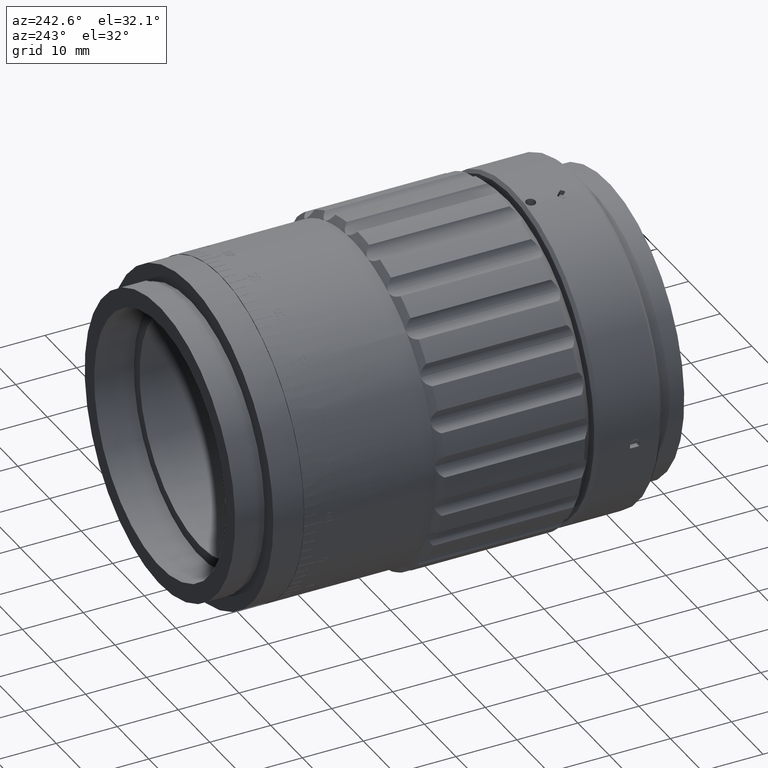
[diagram: clean part render]
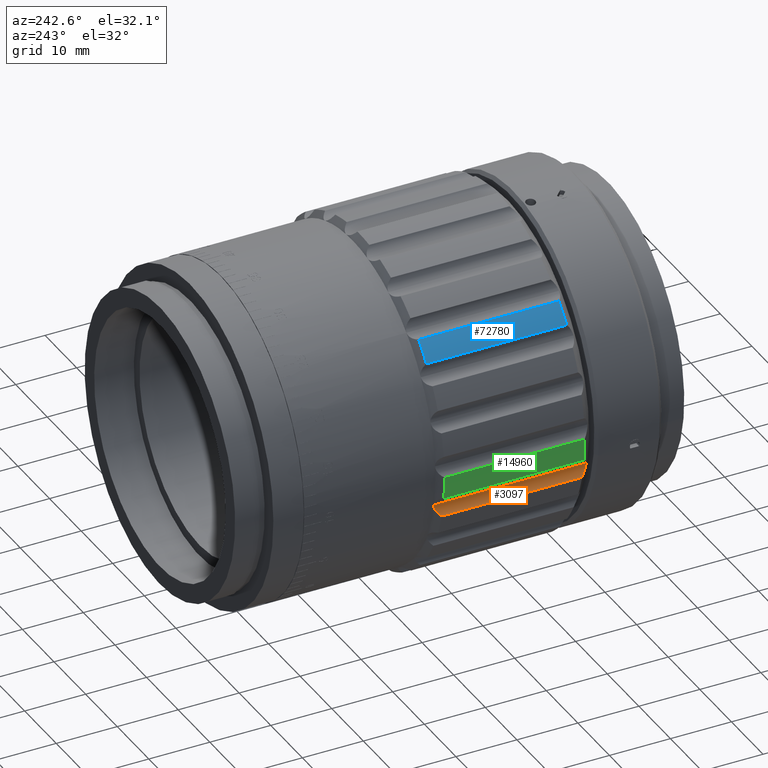
[diagram: same view with three faces highlighted in distinct colors, each labeled with its STEP entity id]
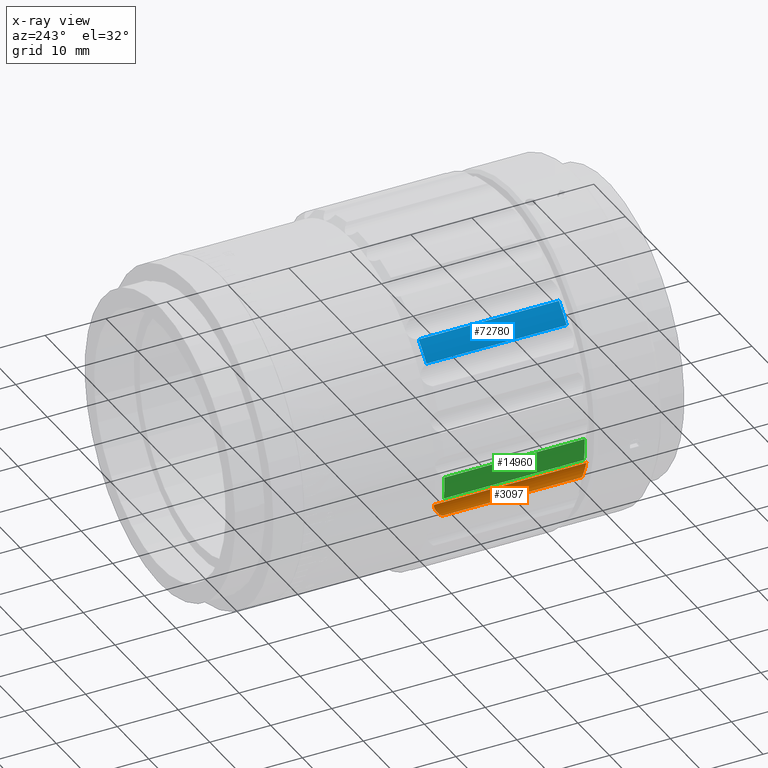
[diagram: x-ray of the same camera — body ghosted, the three highlighted faces saturated]
A machine part, auxiliary view with three faces highlighted in distinct colors.
The next image is the same camera in x-ray (body ghosted, the three faces saturated) — at least one of them is partly hidden behind the body in this view.
Their STEP definitions:

[orange] entity #3097 — the highlighted cylindrical surface (edge-blend (fillet) strip) has radius 2 mm, axis along (0, -1, -0).
#1359 = CYLINDRICAL_SURFACE ( 'NONE', #30071, 2.000000000000002700 ) ;
#2084 = CARTESIAN_POINT ( 'NONE',  ( 23.36665392907053700, -3.441570337347433100, -12.45138271275691500 ) ) ;
#2279 = CARTESIAN_POINT ( 'NONE',  ( 22.73316684934169300, -28.21457821189759200, -13.12499999999982200 ) ) ;
#3097 = ADVANCED_FACE ( 'NONE', ( #77500 ), #1359, .F. ) ;
#3414 = DIRECTION ( 'NONE',  ( 0.0000000000000000000, -1.000000000000000000, 0.0000000000000000000 ) ) ;
#4256 = CARTESIAN_POINT ( 'NONE',  ( 23.22371866839297600, -28.06476916104587400, -12.55448674485722000 ) ) ;
#5098 = CARTESIAN_POINT ( 'NONE',  ( 23.66347315926447700, -27.80261297679608000, -12.28495461717019500 ) ) ;
#10450 = EDGE_CURVE ( 'NONE', #26465, #73636, #64541, .T. ) ;
#11109 = CARTESIAN_POINT ( 'NONE',  ( 24.46521765691058200, -2.714578211897591900, -14.12499999999980800 ) ) ;
#11252 = CARTESIAN_POINT ( 'NONE',  ( 23.15269362647170600, -28.09926723534074700, -12.61309592739423400 ) ) ;
#15771 = CARTESIAN_POINT ( 'NONE',  ( 23.43958839450139200, -3.484700486296731000, -12.40594440328807700 ) ) ;
#17660 = CARTESIAN_POINT ( 'NONE',  ( 22.95518548577694400, -28.17713089429709700, -12.81008659143822600 ) ) ;
#21571 = VERTEX_POINT ( 'NONE', #2279 ) ;
#24651 = CARTESIAN_POINT ( 'NONE',  ( 22.83631678320371700, -28.20691269605203300, -12.96057895350906000 ) ) ;
#26465 = VERTEX_POINT ( 'NONE', #42260 ) ;
#27944 = CARTESIAN_POINT ( 'NONE',  ( 22.73316684934169300, -3.214578211897676200, -13.12499999999982400 ) ) ;
#28938 = CARTESIAN_POINT ( 'NONE',  ( 24.11114494454815500, -3.964103246584269600, -12.15061308000399300 ) ) ;
#30071 = AXIS2_PLACEMENT_3D ( 'NONE', #11109, #83419, #31234 ) ;
#31234 = DIRECTION ( 'NONE',  ( -0.8660254037844434800, 0.0000000000000000000, 0.4999999999999919500 ) ) ;
#31956 = CARTESIAN_POINT ( 'NONE',  ( 22.73316684934169300, -28.21457821189759200, -13.12499999999982200 ) ) ;
#34926 = B_SPLINE_CURVE_WITH_KNOTS ( 'NONE', 3,
 ( #45088, #37805, #84991, #51202, #5098, #84712, #37518, #4256, #11252, #71843, #17660, #24651, #51773, #31956 ),
 .UNSPECIFIED., .F., .F.,
 ( 4, 2, 2, 2, 2, 2, 4 ),
 ( 2.979895395329111000E-007, 0.0005735843058146299400, 0.001146870622089727100, 0.001433513780227274700, 0.001720156938364822300, 0.002006800096502369900, 0.002293443254639917300 ),
 .UNSPECIFIED. ) ;
#35634 = CARTESIAN_POINT ( 'NONE',  ( 24.25793306616263200, -4.086351499841626400, -12.13045732573745100 ) ) ;
#36349 = DIRECTION ( 'NONE',  ( 0.0000000000000000000, -1.000000000000000000, 0.0000000000000000000 ) ) ;
#36403 = ORIENTED_EDGE ( 'NONE', *, *, #67734, .T. ) ;
#37518 = CARTESIAN_POINT ( 'NONE',  ( 23.36728391745860000, -27.98722358619830400, -12.45097098984443600 ) ) ;
#37805 = CARTESIAN_POINT ( 'NONE',  ( 24.25790303709192100, -27.34283140253415200, -12.13045825504238300 ) ) ;
#42260 = CARTESIAN_POINT ( 'NONE',  ( 24.40335358830755300, -4.214578211897617200, -12.12595701971752500 ) ) ;
#42648 = CARTESIAN_POINT ( 'NONE',  ( 23.81394333517196300, -3.734194245562723900, -12.22778811058571500 ) ) ;
#43428 = CARTESIAN_POINT ( 'NONE',  ( 24.40335358830755300, -15.71457821189758900, -12.12595701971752300 ) ) ;
#45088 = CARTESIAN_POINT ( 'NONE',  ( 24.40335358830755700, -27.21457821189765600, -12.12595701971752300 ) ) ;
#45246 = EDGE_CURVE ( 'NONE', #46549, #21571, #77575, .T. ) ;
#46549 = VERTEX_POINT ( 'NONE', #27944 ) ;
#48294 = EDGE_CURVE ( 'NONE', #73636, #21571, #34926, .T. ) ;
#48617 = CARTESIAN_POINT ( 'NONE',  ( 22.73316684934169300, -2.714578211897591900, -13.12499999999982200 ) ) ;
#48764 = CARTESIAN_POINT ( 'NONE',  ( 23.66141083893520800, -3.625167664365868300, -12.28593373872478300 ) ) ;
#49624 = CARTESIAN_POINT ( 'NONE',  ( 22.82930795209946600, -3.214578211897676200, -12.95847872532767800 ) ) ;
#51202 = CARTESIAN_POINT ( 'NONE',  ( 23.81517680416641300, -27.69403601927518500, -12.22741002583297400 ) ) ;
#51773 = CARTESIAN_POINT ( 'NONE',  ( 22.78129773828072000, -28.21457821189759200, -13.04163485494398100 ) ) ;
#56045 = CARTESIAN_POINT ( 'NONE',  ( 22.95138981050834900, -3.245789140871163900, -12.80495319060133300 ) ) ;
#59865 = VECTOR ( 'NONE', #36349, 1000.000000000000000 ) ;
#60994 = B_SPLINE_CURVE_WITH_KNOTS ( 'NONE', 3,
 ( #68837, #49624, #56045, #81974, #69706, #2084, #15771, #48764, #42648, #28938, #35634, #83135 ),
 .UNSPECIFIED., .F., .F.,
 ( 4, 2, 2, 2, 2, 4 ),
 ( 0.002293443254639922900, 0.002866010891116038200, 0.003152294709354094500, 0.003438578527592150400, 0.004011146164068264300, 0.004583713800544377900 ),
 .UNSPECIFIED. ) ;
#61760 = ORIENTED_EDGE ( 'NONE', *, *, #10450, .T. ) ;
#61977 = ORIENTED_EDGE ( 'NONE', *, *, #48294, .T. ) ;
#64541 = LINE ( 'NONE', #43428, #77080 ) ;
#67734 = EDGE_CURVE ( 'NONE', #46549, #26465, #60994, .T. ) ;
#68837 = CARTESIAN_POINT ( 'NONE',  ( 22.73316684934169300, -3.214578211897676200, -13.12499999999982400 ) ) ;
#69706 = CARTESIAN_POINT ( 'NONE',  ( 23.22307913054056500, -3.364064236255754000, -12.55499077404239100 ) ) ;
#71843 = CARTESIAN_POINT ( 'NONE',  ( 23.01861726366471200, -28.15530689563528800, -12.74083217870726900 ) ) ;
#73636 = VERTEX_POINT ( 'NONE', #77259 ) ;
#74880 = ORIENTED_EDGE ( 'NONE', *, *, #45246, .F. ) ;
#77080 = VECTOR ( 'NONE', #3414, 1000.000000000000000 ) ;
#77259 = CARTESIAN_POINT ( 'NONE',  ( 24.40335358830755700, -27.21457821189765600, -12.12595701971752300 ) ) ;
#77500 = FACE_OUTER_BOUND ( 'NONE', #81100, .T. ) ;
#77575 = LINE ( 'NONE', #48617, #59865 ) ;
#81100 = EDGE_LOOP ( 'NONE', ( #74880, #36403, #61760, #61977 ) ) ;
#81974 = CARTESIAN_POINT ( 'NONE',  ( 23.15217220917712700, -3.329652064939125500, -12.61355657265191300 ) ) ;
#83135 = CARTESIAN_POINT ( 'NONE',  ( 24.40335358830755300, -4.214578211897617200, -12.12595701971752500 ) ) ;
#83419 = DIRECTION ( 'NONE',  ( 0.0000000000000000000, -1.000000000000000000, 0.0000000000000000000 ) ) ;
#84712 = CARTESIAN_POINT ( 'NONE',  ( 23.44042607016181600, -27.94395996729930300, -12.40542373931079600 ) ) ;
#84991 = CARTESIAN_POINT ( 'NONE',  ( 24.11133052577064000, -27.46488145372640600, -12.15062295426908000 ) ) ;

[blue] entity #72780 — the highlighted cylindrical surface (partial cylindrical patch) has radius 27.25 mm, axis along (0, -1, -0).
#6830 = EDGE_LOOP ( 'NONE', ( #55009, #65264, #42208, #19917 ) ) ;
#8052 = FACE_OUTER_BOUND ( 'NONE', #6830, .T. ) ;
#8753 = VERTEX_POINT ( 'NONE', #31872 ) ;
#10825 = CARTESIAN_POINT ( 'NONE',  ( 0.0000000000000000000, -27.21457821189765600, 0.0000000000000000000 ) ) ;
#11378 = DIRECTION ( 'NONE',  ( 0.0000000000000000000, 0.0000000000000000000, 1.000000000000000000 ) ) ;
#11460 = CARTESIAN_POINT ( 'NONE',  ( 5.396722380791890900, -15.71457821189758900, -26.71025809580768100 ) ) ;
#15923 = AXIS2_PLACEMENT_3D ( 'NONE', #23247, #77169, #29391 ) ;
#16602 = DIRECTION ( 'NONE',  ( 0.0000000000000000000, -1.000000000000000000, 0.0000000000000000000 ) ) ;
#17735 = AXIS2_PLACEMENT_3D ( 'NONE', #83682, #16602, #56885 ) ;
#19169 = EDGE_CURVE ( 'NONE', #78057, #43040, #68611, .T. ) ;
#19917 = ORIENTED_EDGE ( 'NONE', *, *, #19169, .T. ) ;
#23247 = CARTESIAN_POINT ( 'NONE',  ( 0.0000000000000000000, -4.214578211897618100, 0.0000000000000000000 ) ) ;
#29391 = DIRECTION ( 'NONE',  ( 0.0000000000000000000, 0.0000000000000000000, -1.000000000000000000 ) ) ;
#29968 = LINE ( 'NONE', #40736, #64337 ) ;
#31872 = CARTESIAN_POINT ( 'NONE',  ( 1.700289969879907000, -4.214578211897617200, -27.19690265486725900 ) ) ;
#36773 = CARTESIAN_POINT ( 'NONE',  ( 5.396722380791887400, -4.214578211897617200, -26.71025809580768500 ) ) ;
#38019 = DIRECTION ( 'NONE',  ( -0.0000000000000000000, 1.000000000000000000, -0.0000000000000000000 ) ) ;
#40736 = CARTESIAN_POINT ( 'NONE',  ( 1.700289969879909400, -15.71457821189758900, -27.19690265486725500 ) ) ;
#40843 = CARTESIAN_POINT ( 'NONE',  ( 1.700289969879911700, -27.21457821189765600, -27.19690265486725900 ) ) ;
#42208 = ORIENTED_EDGE ( 'NONE', *, *, #58798, .F. ) ;
#43040 = VERTEX_POINT ( 'NONE', #40843 ) ;
#43557 = EDGE_CURVE ( 'NONE', #8753, #47313, #48890, .T. ) ;
#47313 = VERTEX_POINT ( 'NONE', #36773 ) ;
#48890 = CIRCLE ( 'NONE', #15923, 27.25000000000000000 ) ;
#50498 = AXIS2_PLACEMENT_3D ( 'NONE', #10825, #64716, #11378 ) ;
#53682 = CARTESIAN_POINT ( 'NONE',  ( 5.396722380791890000, -27.21457821189765600, -26.71025809580768500 ) ) ;
#55009 = ORIENTED_EDGE ( 'NONE', *, *, #73268, .F. ) ;
#56885 = DIRECTION ( 'NONE',  ( 0.0000000000000000000, 0.0000000000000000000, -1.000000000000000000 ) ) ;
#58161 = CYLINDRICAL_SURFACE ( 'NONE', #17735, 27.25000000000000000 ) ;
#58798 = EDGE_CURVE ( 'NONE', #78057, #47313, #81429, .T. ) ;
#63691 = VECTOR ( 'NONE', #38019, 1000.000000000000000 ) ;
#64337 = VECTOR ( 'NONE', #80340, 1000.000000000000000 ) ;
#64716 = DIRECTION ( 'NONE',  ( 0.0000000000000000000, 1.000000000000000000, 0.0000000000000000000 ) ) ;
#65264 = ORIENTED_EDGE ( 'NONE', *, *, #43557, .T. ) ;
#68611 = CIRCLE ( 'NONE', #50498, 27.25000000000000000 ) ;
#72780 = ADVANCED_FACE ( 'NONE', ( #8052 ), #58161, .T. ) ;
#73268 = EDGE_CURVE ( 'NONE', #8753, #43040, #29968, .T. ) ;
#77169 = DIRECTION ( 'NONE',  ( -0.0000000000000000000, -1.000000000000000000, -0.0000000000000000000 ) ) ;
#78057 = VERTEX_POINT ( 'NONE', #53682 ) ;
#80340 = DIRECTION ( 'NONE',  ( 0.0000000000000000000, -1.000000000000000000, 0.0000000000000000000 ) ) ;
#81429 = LINE ( 'NONE', #11460, #63691 ) ;
#83682 = CARTESIAN_POINT ( 'NONE',  ( 0.0000000000000000000, -2.714578211897591900, 0.0000000000000000000 ) ) ;

[green] entity #14960 — the highlighted cylindrical surface (partial cylindrical patch) has radius 27.25 mm, axis along (0, -1, -0).
#781 = DIRECTION ( 'NONE',  ( 0.0000000000000000000, 0.0000000000000000000, 1.000000000000000000 ) ) ;
#1948 = VERTEX_POINT ( 'NONE', #82014 ) ;
#2811 = EDGE_CURVE ( 'NONE', #73600, #40964, #63951, .T. ) ;
#7502 = DIRECTION ( 'NONE',  ( 0.0000000000000000000, -1.000000000000000000, 0.0000000000000000000 ) ) ;
#8229 = CARTESIAN_POINT ( 'NONE',  ( 22.70306361842767000, -15.71457821189758900, -15.07094563514929700 ) ) ;
#14960 = ADVANCED_FACE ( 'NONE', ( #72190 ), #28177, .T. ) ;
#18824 = VERTEX_POINT ( 'NONE', #22955 ) ;
#20879 = CARTESIAN_POINT ( 'NONE',  ( 20.43340086221276800, -15.71457821189758900, -18.02882772684132100 ) ) ;
#21606 = ORIENTED_EDGE ( 'NONE', *, *, #51821, .F. ) ;
#22955 = CARTESIAN_POINT ( 'NONE',  ( 20.43340086221277100, -27.21457821189765600, -18.02882772684132100 ) ) ;
#24985 = EDGE_CURVE ( 'NONE', #1948, #40964, #26559, .T. ) ;
#26559 = CIRCLE ( 'NONE', #81879, 27.25000000000000000 ) ;
#28177 = CYLINDRICAL_SURFACE ( 'NONE', #39265, 27.25000000000000000 ) ;
#28358 = DIRECTION ( 'NONE',  ( -0.0000000000000000000, 1.000000000000000000, -0.0000000000000000000 ) ) ;
#36442 = CIRCLE ( 'NONE', #52604, 27.25000000000000000 ) ;
#38667 = CARTESIAN_POINT ( 'NONE',  ( 22.70306361842767400, -4.214578211897617200, -15.07094563514930200 ) ) ;
#39265 = AXIS2_PLACEMENT_3D ( 'NONE', #73088, #45726, #39322 ) ;
#39322 = DIRECTION ( 'NONE',  ( 0.0000000000000000000, 0.0000000000000000000, -1.000000000000000000 ) ) ;
#40964 = VERTEX_POINT ( 'NONE', #38667 ) ;
#45726 = DIRECTION ( 'NONE',  ( 0.0000000000000000000, -1.000000000000000000, 0.0000000000000000000 ) ) ;
#47177 = ORIENTED_EDGE ( 'NONE', *, *, #24985, .T. ) ;
#51821 = EDGE_CURVE ( 'NONE', #1948, #18824, #54698, .T. ) ;
#52604 = AXIS2_PLACEMENT_3D ( 'NONE', #73938, #69287, #781 ) ;
#52780 = CARTESIAN_POINT ( 'NONE',  ( 0.0000000000000000000, -4.214578211897618100, 0.0000000000000000000 ) ) ;
#54698 = LINE ( 'NONE', #20879, #80762 ) ;
#57753 = CARTESIAN_POINT ( 'NONE',  ( 22.70306361842767400, -27.21457821189765600, -15.07094563514930000 ) ) ;
#60898 = EDGE_CURVE ( 'NONE', #73600, #18824, #36442, .T. ) ;
#63951 = LINE ( 'NONE', #8229, #65028 ) ;
#65028 = VECTOR ( 'NONE', #28358, 1000.000000000000000 ) ;
#66171 = DIRECTION ( 'NONE',  ( -0.0000000000000000000, -1.000000000000000000, -0.0000000000000000000 ) ) ;
#69287 = DIRECTION ( 'NONE',  ( 0.0000000000000000000, 1.000000000000000000, 0.0000000000000000000 ) ) ;
#71447 = EDGE_LOOP ( 'NONE', ( #21606, #47177, #85096, #73771 ) ) ;
#72190 = FACE_OUTER_BOUND ( 'NONE', #71447, .T. ) ;
#73088 = CARTESIAN_POINT ( 'NONE',  ( 0.0000000000000000000, -2.714578211897591900, 0.0000000000000000000 ) ) ;
#73600 = VERTEX_POINT ( 'NONE', #57753 ) ;
#73771 = ORIENTED_EDGE ( 'NONE', *, *, #60898, .T. ) ;
#73938 = CARTESIAN_POINT ( 'NONE',  ( 0.0000000000000000000, -27.21457821189765600, 0.0000000000000000000 ) ) ;
#79856 = DIRECTION ( 'NONE',  ( 0.0000000000000000000, 0.0000000000000000000, -1.000000000000000000 ) ) ;
#80762 = VECTOR ( 'NONE', #7502, 1000.000000000000000 ) ;
#81879 = AXIS2_PLACEMENT_3D ( 'NONE', #52780, #66171, #79856 ) ;
#82014 = CARTESIAN_POINT ( 'NONE',  ( 20.43340086221276400, -4.214578211897617200, -18.02882772684132800 ) ) ;
#85096 = ORIENTED_EDGE ( 'NONE', *, *, #2811, .F. ) ;